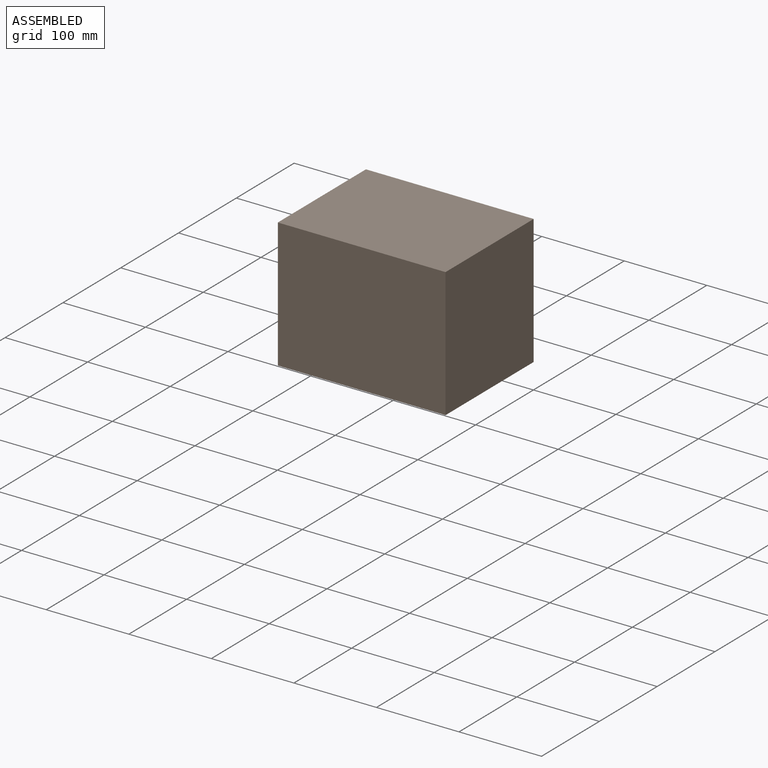
[diagram: assembled view]
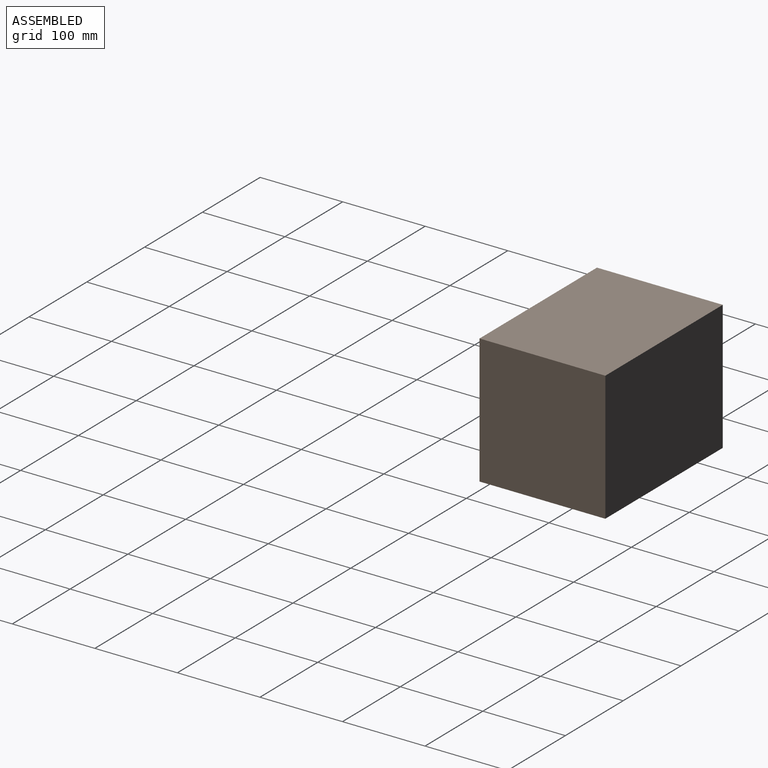
[diagram: assembled view, second angle]
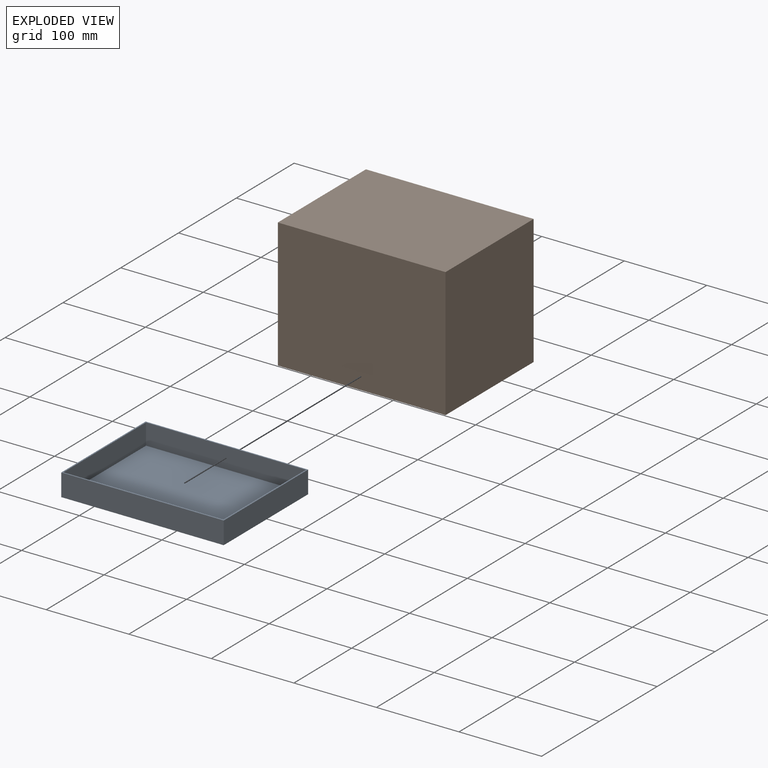
[diagram: exploded view]
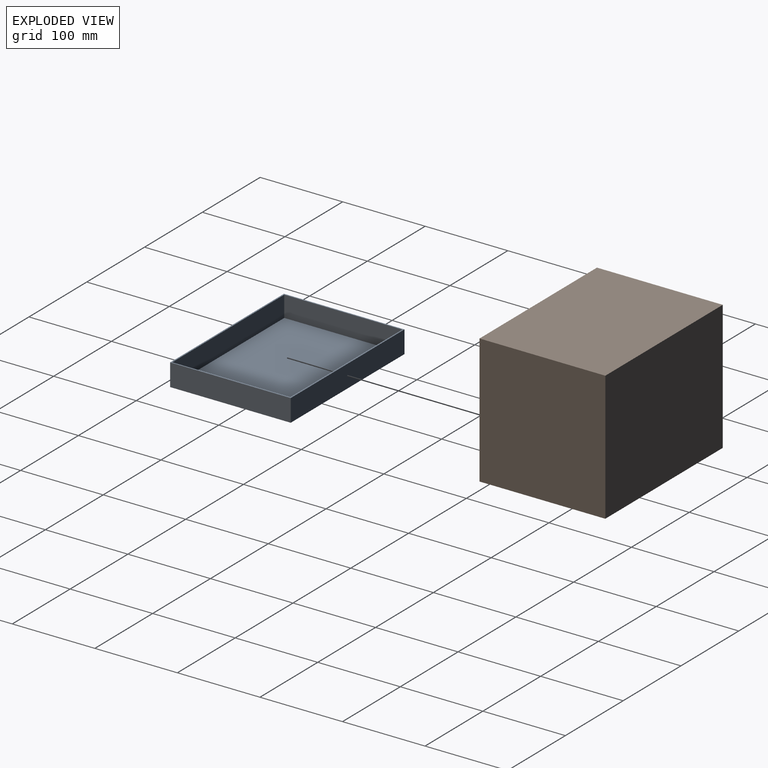
[diagram: exploded view, second angle]
ASSEMBLY  parts=2 mates=2
PART A: 11 faces, bbox 196.9x146.1x27 mm
  f0: plane 196.85x26.99mm, normal (0,1,0), area 5312.5mm2, adj f1,f3,f4,f9
  f1: plane 146.05x26.99mm, normal (-1,0,0), area 3941.5mm2, adj f0,f2,f4,f9
  f2: plane 196.85x26.99mm, normal (0,-1,0), area 5312.5mm2, adj f1,f3,f4,f9
  f3: plane 146.05x26.99mm, normal (1,0,0), area 3941.5mm2, adj f0,f2,f4,f9
  f4: plane 196.85x146.05mm, normal (0,0,-1), area 28749.9mm2, adj f0,f1,f2,f3
  f5: plane 193.68x25.4mm, normal (0,1,0), area 4919.3mm2, adj f6,f8,f9,f10
  f6: plane 142.88x25.4mm, normal (1,0,0), area 3629mm2, adj f5,f7,f9,f10
  f7: plane 193.68x25.4mm, normal (0,-1,0), area 4919.3mm2, adj f6,f8,f9,f10
  f8: plane 142.88x25.4mm, normal (-1,0,0), area 3629mm2, adj f5,f7,f9,f10
  f9: plane 196.85x146.05mm, normal (0,0,1), area 1078.6mm2, adj f0,f1,f2,f3,f5,f6,f7,f8
  f10: plane 193.68x142.88mm, normal (0,0,1), area 27671.3mm2, adj f5,f6,f7,f8
PART B: 11 faces, bbox 203.2x152.4x156.6 mm
  f0: plane 156.63x152.4mm, normal (-1,0,0), area 23870.9mm2, adj f1,f3,f4,f9
  f1: plane 203.2x156.63mm, normal (0,-1,0), area 31827.9mm2, adj f0,f2,f4,f9
  f2: plane 156.63x152.4mm, normal (1,0,0), area 23870.9mm2, adj f1,f3,f4,f9
  f3: plane 203.2x156.63mm, normal (0,1,0), area 31827.9mm2, adj f0,f2,f4,f9
  f4: plane 203.2x152.4mm, normal (0,0,-1), area 30967.7mm2, adj f0,f1,f2,f3
  f5: plane 194.73x152.4mm, normal (0,1,0), area 29677.4mm2, adj f6,f8,f9,f10
  f6: plane 152.4x143.93mm, normal (1,0,0), area 21935.4mm2, adj f5,f7,f9,f10
  f7: plane 194.73x152.4mm, normal (0,-1,0), area 29677.4mm2, adj f6,f8,f9,f10
  f8: plane 152.4x143.93mm, normal (-1,0,0), area 21935.4mm2, adj f5,f7,f9,f10
  f9: plane 203.2x152.4mm, normal (0,0,1), area 2939.1mm2, adj f0,f1,f2,f3,f5,f6,f7,f8
  f10: plane 194.73x143.93mm, normal (0,0,1), area 28028.6mm2, adj f5,f6,f7,f8
PLACE A t=(67,-2.16,-1.67)mm
PLACE B rot(axis=(0,1,0),180deg) t=(167.26,74.93,154.18)mm
MATE planar A.f3 <-> B.f6  axis (1,0,0) through (263.85,70.87,11.82)mm
MATE planar A.f2 <-> B.f5  axis (0,-1,0) through (165.42,-2.16,11.82)mm
